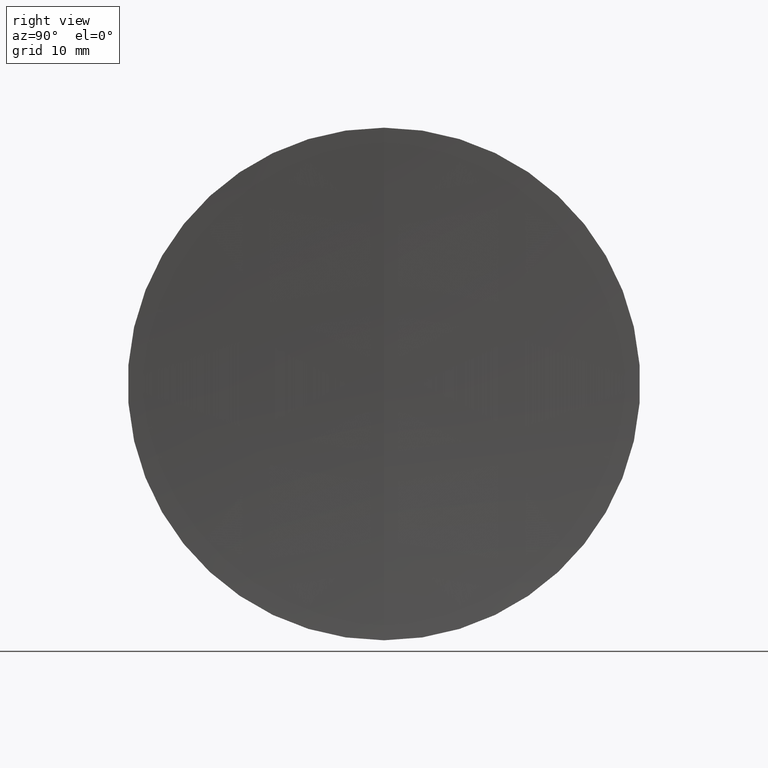
[diagram: clean part render]
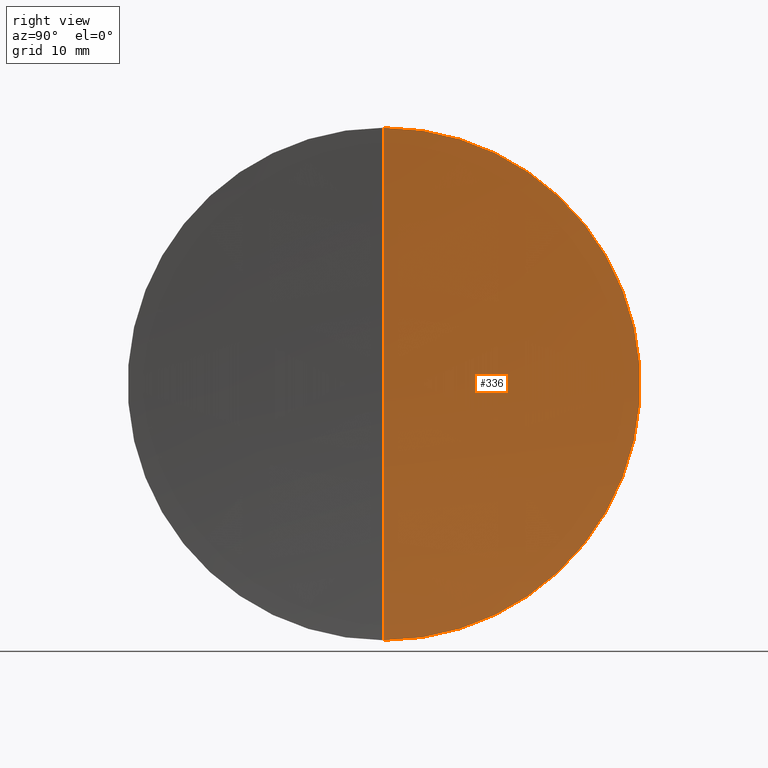
[diagram: same view with one face highlighted and labeled with its STEP entity id]
A machine part, right view. The second image highlights one B-rep face of the part: STEP entity #336.
In plain terms, the highlighted spherical surface has radius 376.25 mm.
Its self-contained STEP definition (entity closure, byte-faithful):
#16 = DIRECTION ( 'NONE',  ( 0.0000000000000000000, -1.000000000000000000, -1.224646799147353200E-016 ) ) ;
#47 = AXIS2_PLACEMENT_3D ( 'NONE', #101, #238, #129 ) ;
#54 = ORIENTED_EDGE ( 'NONE', *, *, #110, .F. ) ;
#58 = CARTESIAN_POINT ( 'NONE',  ( 209.7231034970280100, 0.0000000000000000000, -25.40000000000006300 ) ) ;
#73 = DIRECTION ( 'NONE',  ( 0.0000000000000000000, 1.000000000000000000, -0.0000000000000000000 ) ) ;
#78 = CIRCLE ( 'NONE', #221, 376.2500000000000000 ) ;
#87 = CARTESIAN_POINT ( 'NONE',  ( 585.1147689612468000, 0.0000000000000000000, 0.0000000000000000000 ) ) ;
#88 = CIRCLE ( 'NONE', #209, 25.40000000000001300 ) ;
#101 = CARTESIAN_POINT ( 'NONE',  ( 585.1147689612468000, 0.0000000000000000000, 0.0000000000000000000 ) ) ;
#105 = CARTESIAN_POINT ( 'NONE',  ( 209.7231034970280100, -3.110602869834284800E-015, 25.40000000000006300 ) ) ;
#110 = EDGE_CURVE ( 'NONE', #276, #305, #88, .T. ) ;
#129 = DIRECTION ( 'NONE',  ( 0.0000000000000000000, 0.0000000000000000000, -1.000000000000000000 ) ) ;
#133 = DIRECTION ( 'NONE',  ( -1.000000000000000000, -0.0000000000000000000, -0.0000000000000000000 ) ) ;
#137 = FACE_OUTER_BOUND ( 'NONE', #321, .T. ) ;
#164 = SPHERICAL_SURFACE ( 'NONE', #47, 376.2500000000000000 ) ;
#172 = ORIENTED_EDGE ( 'NONE', *, *, #270, .T. ) ;
#173 = CARTESIAN_POINT ( 'NONE',  ( 209.7231034970280100, 0.0000000000000000000, 0.0000000000000000000 ) ) ;
#196 = CARTESIAN_POINT ( 'NONE',  ( 585.1147689612468000, 0.0000000000000000000, 0.0000000000000000000 ) ) ;
#209 = AXIS2_PLACEMENT_3D ( 'NONE', #173, #133, #319 ) ;
#221 = AXIS2_PLACEMENT_3D ( 'NONE', #196, #73, #265 ) ;
#238 = DIRECTION ( 'NONE',  ( -0.0000000000000000000, -1.000000000000000000, -0.0000000000000000000 ) ) ;
#265 = DIRECTION ( 'NONE',  ( 0.0000000000000000000, 0.0000000000000000000, 1.000000000000000000 ) ) ;
#269 = CARTESIAN_POINT ( 'NONE',  ( 208.8647689612468500, 0.0000000000000000000, -2.303866790895958100E-014 ) ) ;
#270 = EDGE_CURVE ( 'NONE', #276, #297, #344, .T. ) ;
#276 = VERTEX_POINT ( 'NONE', #105 ) ;
#281 = ORIENTED_EDGE ( 'NONE', *, *, #308, .F. ) ;
#297 = VERTEX_POINT ( 'NONE', #269 ) ;
#305 = VERTEX_POINT ( 'NONE', #58 ) ;
#308 = EDGE_CURVE ( 'NONE', #305, #297, #78, .T. ) ;
#316 = DIRECTION ( 'NONE',  ( 0.0000000000000000000, 1.224646799147353200E-016, -1.000000000000000000 ) ) ;
#319 = DIRECTION ( 'NONE',  ( 0.0000000000000000000, 0.0000000000000000000, 1.000000000000000000 ) ) ;
#321 = EDGE_LOOP ( 'NONE', ( #54, #172, #281 ) ) ;
#326 = AXIS2_PLACEMENT_3D ( 'NONE', #87, #16, #316 ) ;
#336 = ADVANCED_FACE ( 'NONE', ( #137 ), #164, .F. ) ;
#344 = CIRCLE ( 'NONE', #326, 376.2500000000000000 ) ;